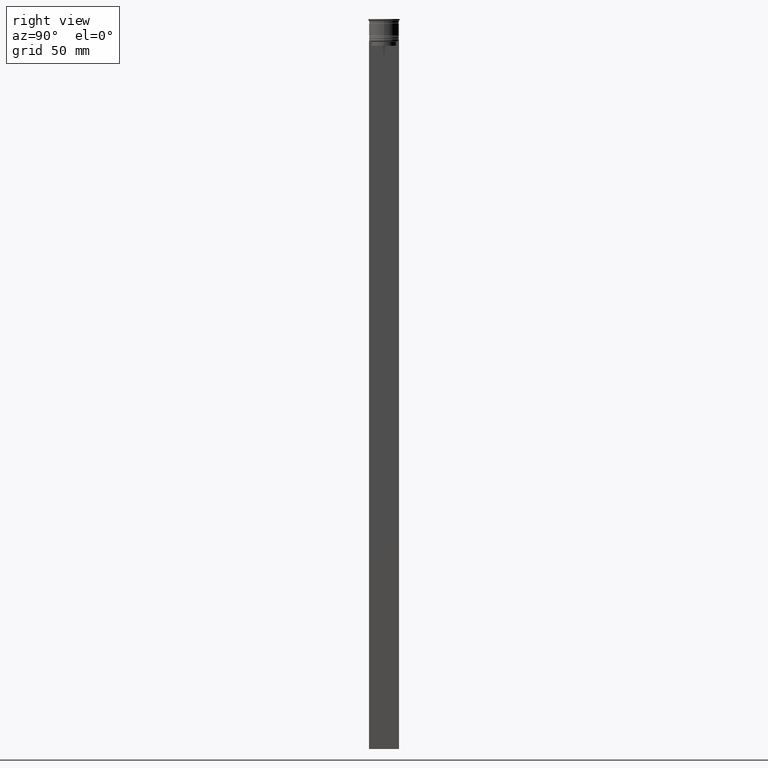
[diagram: clean part render]
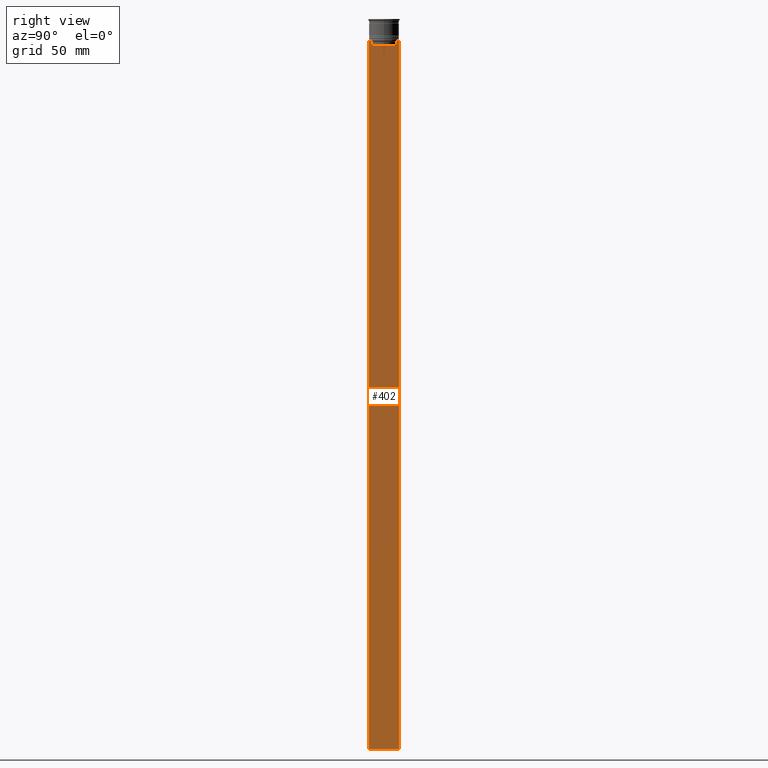
[diagram: same view with one face highlighted and labeled with its STEP entity id]
A machine part, right view. The second image highlights one B-rep face of the part: STEP entity #402.
In plain terms, the highlighted planar face has unit normal (-1, 0, 0).
Its self-contained STEP definition (entity closure, byte-faithful):
#56 = CARTESIAN_POINT ( 'NONE',  ( 0.5000000000000000000, -8.385105843100605583, -14.00000000000000178 ) ) ;
#88 = LINE ( 'NONE', #906, #962 ) ;
#102 = VERTEX_POINT ( 'NONE', #130 ) ;
#130 = CARTESIAN_POINT ( 'NONE',  ( 0.5000000000000000000, -7.884161337770803080, -14.50000000000000000 ) ) ;
#243 = FACE_OUTER_BOUND ( 'NONE', #1693, .T. ) ;
#282 = VECTOR ( 'NONE', #517, 1000.000000000000000 ) ;
#402 = ADVANCED_FACE ( 'NONE', ( #243 ), #853, .F. ) ;
#403 = CARTESIAN_POINT ( 'NONE',  ( 0.5000000000000000000, 7.884161337770803080, -14.50000000000000000 ) ) ;
#405 = LINE ( 'NONE', #2052, #2109 ) ;
#433 = ORIENTED_EDGE ( 'NONE', *, *, #1798, .T. ) ;
#440 = VERTEX_POINT ( 'NONE', #2150 ) ;
#463 = DIRECTION ( 'NONE',  ( 0.000000000000000000, 0.000000000000000000, 1.000000000000000000 ) ) ;
#510 = CARTESIAN_POINT ( 'NONE',  ( 0.5000000000000000000, -8.051152795888546265, -14.33334334204685057 ) ) ;
#517 = DIRECTION ( 'NONE',  ( 0.000000000000000000, -1.000000000000000000, 0.000000000000000000 ) ) ;
#540 = DIRECTION ( 'NONE',  ( 0.000000000000000000, 0.000000000000000000, -1.000000000000000000 ) ) ;
#559 = CARTESIAN_POINT ( 'NONE',  ( 0.5000000000000000000, -9.500000000000001776, -14.00000000000000178 ) ) ;
#576 = ORIENTED_EDGE ( 'NONE', *, *, #2523, .T. ) ;
#608 = CARTESIAN_POINT ( 'NONE',  ( 0.5000000000000000000, -9.386692708297204035, -14.00000000000000178 ) ) ;
#630 = LINE ( 'NONE', #1488, #1144 ) ;
#635 = VECTOR ( 'NONE', #2535, 1000.000000000000000 ) ;
#656 = CARTESIAN_POINT ( 'NONE',  ( 0.5000000000000000000, -9.500000000000001776, 5.026297590440445440 ) ) ;
#667 = CARTESIAN_POINT ( 'NONE',  ( 0.5000000000000000000, 9.499999999999998224, 5.026297590440445440 ) ) ;
#686 = ORIENTED_EDGE ( 'NONE', *, *, #1962, .T. ) ;
#723 = DIRECTION ( 'NONE',  ( 0.000000000000000000, 1.000000000000000000, 0.000000000000000000 ) ) ;
#725 = EDGE_CURVE ( 'NONE', #1836, #440, #2011, .T. ) ;
#745 = CARTESIAN_POINT ( 'NONE',  ( 0.5000000000000000000, 9.499999999999998224, -14.00000000000000178 ) ) ;
#762 = CARTESIAN_POINT ( 'NONE',  ( 0.5000000000000000000, -9.500000000000001776, -464.0000000000000000 ) ) ;
#776 = CARTESIAN_POINT ( 'NONE',  ( 0.5000000000000000000, -7.884161337770803080, -17.00000000000000000 ) ) ;
#811 = CARTESIAN_POINT ( 'NONE',  ( 0.5000000000000000000, 8.218133718559618828, -14.16667606394327983 ) ) ;
#853 = PLANE ( 'NONE',  #1228 ) ;
#893 = LINE ( 'NONE', #2174, #2104 ) ;
#899 = LINE ( 'NONE', #1940, #635 ) ;
#906 = CARTESIAN_POINT ( 'NONE',  ( 0.5000000000000000000, -9.500000000000001776, -14.00000000000000178 ) ) ;
#920 = LINE ( 'NONE', #559, #282 ) ;
#936 = LINE ( 'NONE', #1515, #2570 ) ;
#962 = VECTOR ( 'NONE', #1176, 1000.000000000000000 ) ;
#1000 = ORIENTED_EDGE ( 'NONE', *, *, #1419, .T. ) ;
#1022 = LINE ( 'NONE', #667, #2616 ) ;
#1127 = CARTESIAN_POINT ( 'NONE',  ( 0.5000000000000000000, -7.884161337770803080, -14.50000000000000000 ) ) ;
#1140 = LINE ( 'NONE', #1555, #2057 ) ;
#1144 = VECTOR ( 'NONE', #2095, 1000.000000000000000 ) ;
#1176 = DIRECTION ( 'NONE',  ( 0.000000000000000000, -1.000000000000000000, 0.000000000000000000 ) ) ;
#1211 = LINE ( 'NONE', #2493, #1363 ) ;
#1228 = AXIS2_PLACEMENT_3D ( 'NONE', #656, #1476, #463 ) ;
#1232 = VERTEX_POINT ( 'NONE', #2503 ) ;
#1242 = DIRECTION ( 'NONE',  ( 0.000000000000000000, 0.000000000000000000, -1.000000000000000000 ) ) ;
#1309 = VERTEX_POINT ( 'NONE', #1892 ) ;
#1363 = VECTOR ( 'NONE', #1242, 1000.000000000000000 ) ;
#1378 = EDGE_CURVE ( 'NONE', #1309, #1914, #936, .T. ) ;
#1419 = EDGE_CURVE ( 'NONE', #1232, #1556, #920, .T. ) ;
#1447 = EDGE_CURVE ( 'NONE', #1761, #2312, #1140, .T. ) ;
#1455 = ORIENTED_EDGE ( 'NONE', *, *, #2597, .T. ) ;
#1476 = DIRECTION ( 'NONE',  ( -1.000000000000000000, 0.000000000000000000, 0.000000000000000000 ) ) ;
#1478 = ORIENTED_EDGE ( 'NONE', *, *, #2042, .T. ) ;
#1488 = CARTESIAN_POINT ( 'NONE',  ( 0.5000000000000000000, -7.884161337770803080, 0.000000000000000000 ) ) ;
#1496 = CARTESIAN_POINT ( 'NONE',  ( 0.5000000000000000000, -8.218133703942523738, -14.16667607853445787 ) ) ;
#1499 = ORIENTED_EDGE ( 'NONE', *, *, #2090, .F. ) ;
#1515 = CARTESIAN_POINT ( 'NONE',  ( 0.5000000000000000000, 7.899999999999994138, -17.00000000000000000 ) ) ;
#1555 = CARTESIAN_POINT ( 'NONE',  ( 0.5000000000000000000, -9.500000000000001776, 5.026297590440445440 ) ) ;
#1556 = VERTEX_POINT ( 'NONE', #608 ) ;
#1622 = VERTEX_POINT ( 'NONE', #2073 ) ;
#1631 = B_SPLINE_CURVE_WITH_KNOTS ( 'NONE', 3,
 ( #1127, #510, #1496, #56 ),
 .UNSPECIFIED., .F., .F.,
 ( 4, 4 ),
 ( 0.03673372442973153046, 0.03744389749832059688 ),
 .UNSPECIFIED. ) ;
#1641 = DIRECTION ( 'NONE',  ( 0.000000000000000000, 0.000000000000000000, -1.000000000000000000 ) ) ;
#1678 = CARTESIAN_POINT ( 'NONE',  ( 0.5000000000000000000, 8.385105843100605583, -14.00000000000000178 ) ) ;
#1693 = EDGE_LOOP ( 'NONE', ( #1775, #2024, #2629, #2205, #1478, #576, #1000, #686, #2165, #433, #1499, #1455 ) ) ;
#1761 = VERTEX_POINT ( 'NONE', #1989 ) ;
#1775 = ORIENTED_EDGE ( 'NONE', *, *, #1841, .T. ) ;
#1798 = EDGE_CURVE ( 'NONE', #2312, #2068, #893, .T. ) ;
#1836 = VERTEX_POINT ( 'NONE', #1945 ) ;
#1841 = EDGE_CURVE ( 'NONE', #1622, #1836, #88, .T. ) ;
#1892 = CARTESIAN_POINT ( 'NONE',  ( 0.5000000000000000000, 7.884161337770803080, -17.00000000000000000 ) ) ;
#1914 = VERTEX_POINT ( 'NONE', #776 ) ;
#1940 = CARTESIAN_POINT ( 'NONE',  ( 0.5000000000000000000, -9.500000000000001776, -14.00000000000000178 ) ) ;
#1945 = CARTESIAN_POINT ( 'NONE',  ( 0.5000000000000000000, 8.385105843100605583, -14.00000000000000178 ) ) ;
#1962 = EDGE_CURVE ( 'NONE', #1556, #1761, #405, .T. ) ;
#1989 = CARTESIAN_POINT ( 'NONE',  ( 0.5000000000000000000, -9.500000000000001776, -14.00000000000000178 ) ) ;
#2011 = B_SPLINE_CURVE_WITH_KNOTS ( 'NONE', 3,
 ( #1678, #811, #2290, #403 ),
 .UNSPECIFIED., .F., .F.,
 ( 4, 4 ),
 ( 0.01426761478740281447, 0.01497538974438914448 ),
 .UNSPECIFIED. ) ;
#2024 = ORIENTED_EDGE ( 'NONE', *, *, #725, .T. ) ;
#2042 = EDGE_CURVE ( 'NONE', #1914, #102, #630, .T. ) ;
#2052 = CARTESIAN_POINT ( 'NONE',  ( 0.5000000000000000000, -9.500000000000001776, -14.00000000000000178 ) ) ;
#2057 = VECTOR ( 'NONE', #540, 1000.000000000000000 ) ;
#2068 = VERTEX_POINT ( 'NONE', #2498 ) ;
#2073 = CARTESIAN_POINT ( 'NONE',  ( 0.5000000000000000000, 9.386692708297204035, -14.00000000000000178 ) ) ;
#2090 = EDGE_CURVE ( 'NONE', #2243, #2068, #1022, .T. ) ;
#2095 = DIRECTION ( 'NONE',  ( -0.000000000000000000, -0.000000000000000000, 1.000000000000000000 ) ) ;
#2104 = VECTOR ( 'NONE', #723, 1000.000000000000000 ) ;
#2109 = VECTOR ( 'NONE', #2632, 1000.000000000000000 ) ;
#2150 = CARTESIAN_POINT ( 'NONE',  ( 0.5000000000000000000, 7.884161337770803080, -14.50000000000000000 ) ) ;
#2154 = DIRECTION ( 'NONE',  ( 0.000000000000000000, -1.000000000000000000, 0.000000000000000000 ) ) ;
#2165 = ORIENTED_EDGE ( 'NONE', *, *, #1447, .T. ) ;
#2174 = CARTESIAN_POINT ( 'NONE',  ( 0.5000000000000000000, -9.500000000000001776, -464.0000000000000000 ) ) ;
#2205 = ORIENTED_EDGE ( 'NONE', *, *, #1378, .T. ) ;
#2243 = VERTEX_POINT ( 'NONE', #745 ) ;
#2290 = CARTESIAN_POINT ( 'NONE',  ( 0.5000000000000000000, 8.051152811434374001, -14.33334332653219079 ) ) ;
#2312 = VERTEX_POINT ( 'NONE', #762 ) ;
#2443 = EDGE_CURVE ( 'NONE', #440, #1309, #1211, .T. ) ;
#2493 = CARTESIAN_POINT ( 'NONE',  ( 0.5000000000000000000, 7.884161337770803080, 0.000000000000000000 ) ) ;
#2498 = CARTESIAN_POINT ( 'NONE',  ( 0.5000000000000000000, 9.499999999999998224, -464.0000000000000000 ) ) ;
#2503 = CARTESIAN_POINT ( 'NONE',  ( 0.5000000000000000000, -8.385105843100605583, -14.00000000000000178 ) ) ;
#2523 = EDGE_CURVE ( 'NONE', #102, #1232, #1631, .T. ) ;
#2535 = DIRECTION ( 'NONE',  ( 0.000000000000000000, -1.000000000000000000, 0.000000000000000000 ) ) ;
#2570 = VECTOR ( 'NONE', #2154, 1000.000000000000000 ) ;
#2597 = EDGE_CURVE ( 'NONE', #2243, #1622, #899, .T. ) ;
#2616 = VECTOR ( 'NONE', #1641, 1000.000000000000000 ) ;
#2629 = ORIENTED_EDGE ( 'NONE', *, *, #2443, .T. ) ;
#2632 = DIRECTION ( 'NONE',  ( 0.000000000000000000, -1.000000000000000000, 0.000000000000000000 ) ) ;